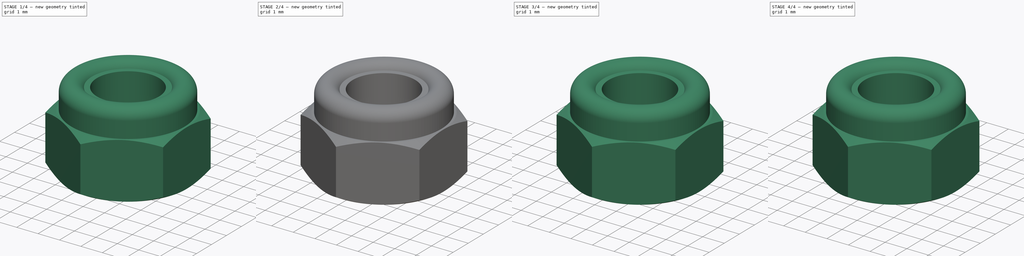
[diagram: build sequence overview — one tinted view per stage of 4, left to right]
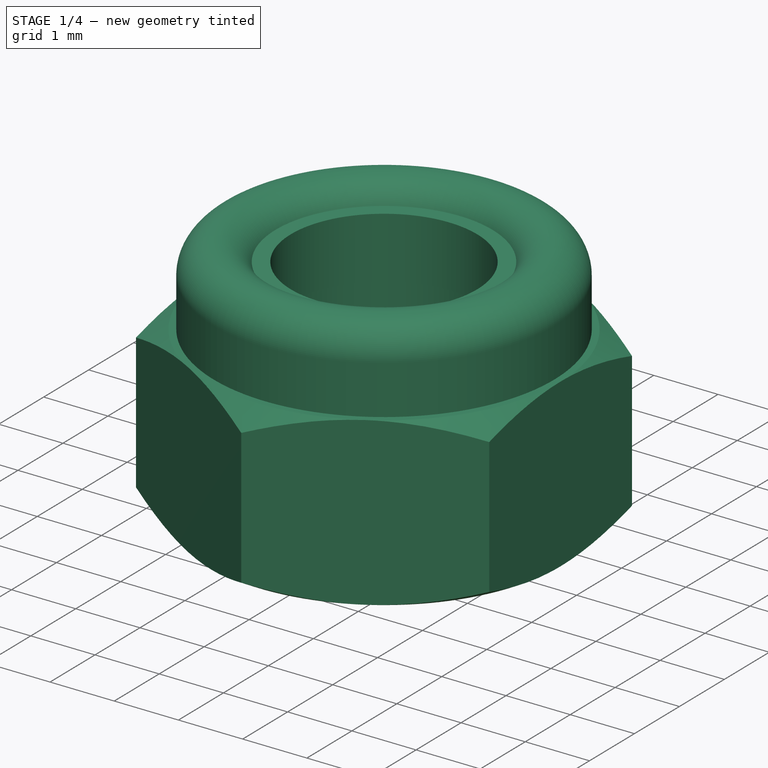
[diagram: stage 1 of 4 — iso view after this stage's code; geometry added in this stage tinted green]
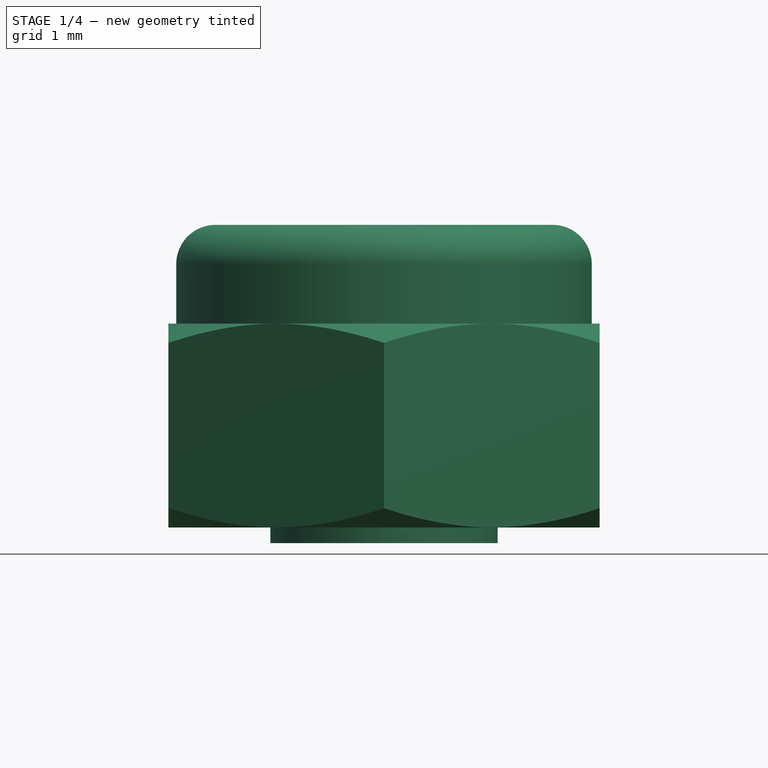
[diagram: stage 1 of 4 — front view after this stage's code; geometry added in this stage tinted green]
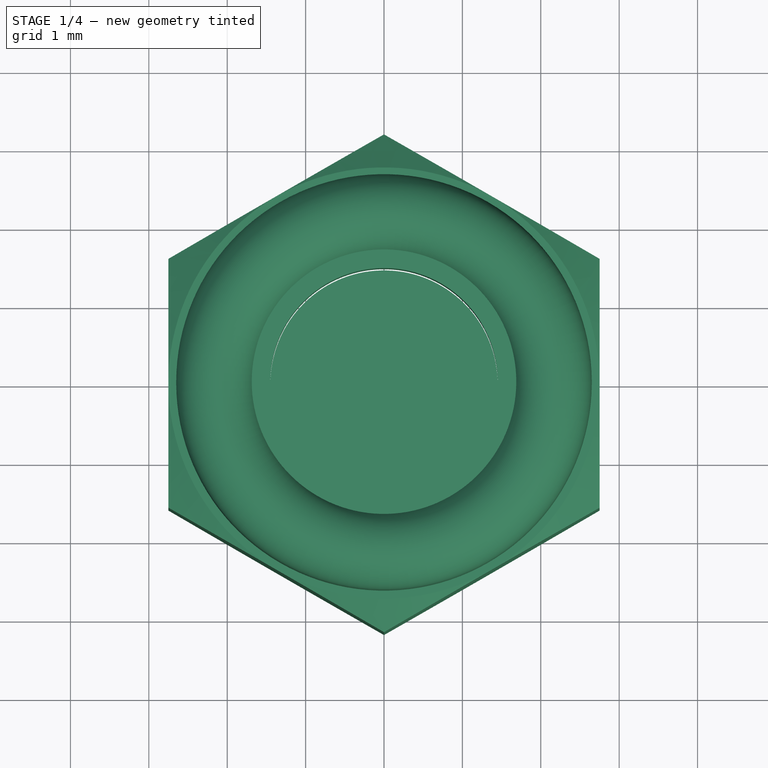
[diagram: stage 1 of 4 — top view after this stage's code; geometry added in this stage tinted green]
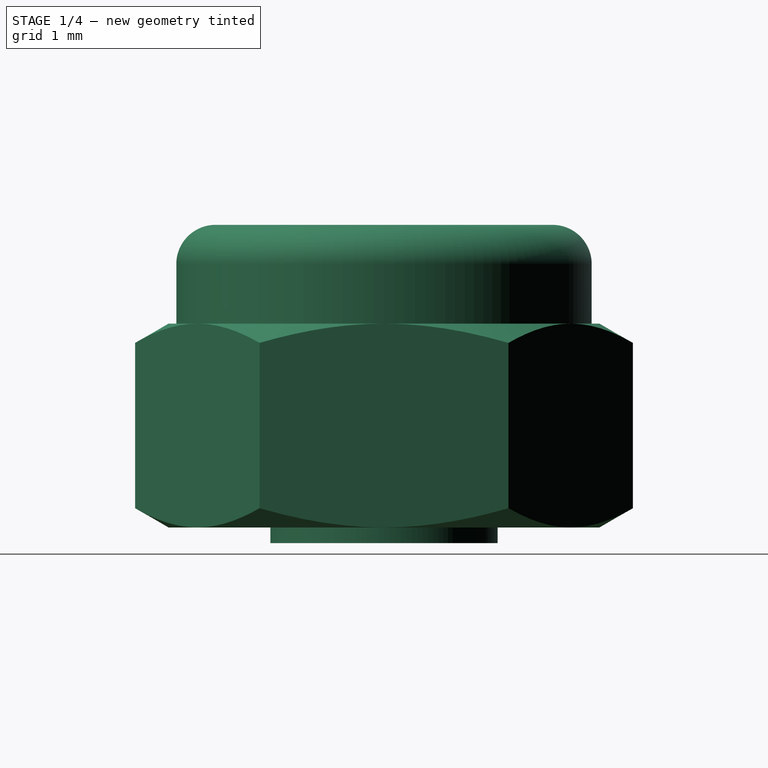
[diagram: stage 1 of 4 — right view after this stage's code; geometry added in this stage tinted green]
FCSTD DOCUMENT  (FreeCAD 0.14R3702 (Git))
Label: Nyloc-Nut_M3
Comment: Derived from the M6 hex nut
License: CC-BY 3.0
LicenseURL: http://creativecommons.org/licenses/by/3.0/
objects: Sketcher::SketchObject×4, PartDesign::Revolution×2, PartDesign::Pocket×2, Part::Cylinder×2, Part::Feature×2, Part::MultiFuse×1, Part::Chamfer×1, Part::Cut×1, Part::Compound×1
note: 20 computed .brp shape members not serialized (recipe doc carries the construction recipe); baked Part::Feature solids carry a one-line shape summary decoded from their .brp

FEATURE [Part::Cylinder] Cylinder001
  Angle = 360
  Height = 2
  Placement = pos=(0,0,-0.2) rot=(0,0,1;0rad)
  Radius = 1.45
FEATURE [Part::Feature] Chamfer001  label="nut-base"
  shape: bbox 6.35 x 6.35 x 3.86 mm, 32 faces (baked)
FEATURE [Part::Feature] Cut001  label="nylon-neck"
  Placement = pos=(0,0,2.6) rot=(0,0,1;0rad)
  shape: bbox 3.5 x 3.5 x 0.95 mm, 4 faces (baked)
FEATURE [Part::Compound] Compound  label="Nyloc-nut-M3"
  Links = -> [Chamfer001,Cut001]
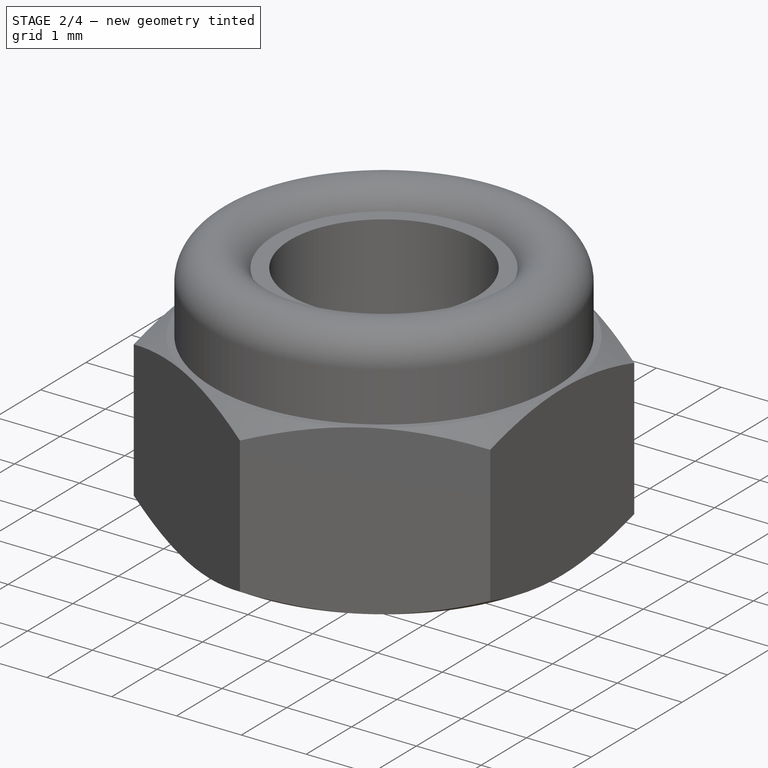
[diagram: stage 2 of 4 — iso view after this stage's code; geometry added in this stage tinted green]
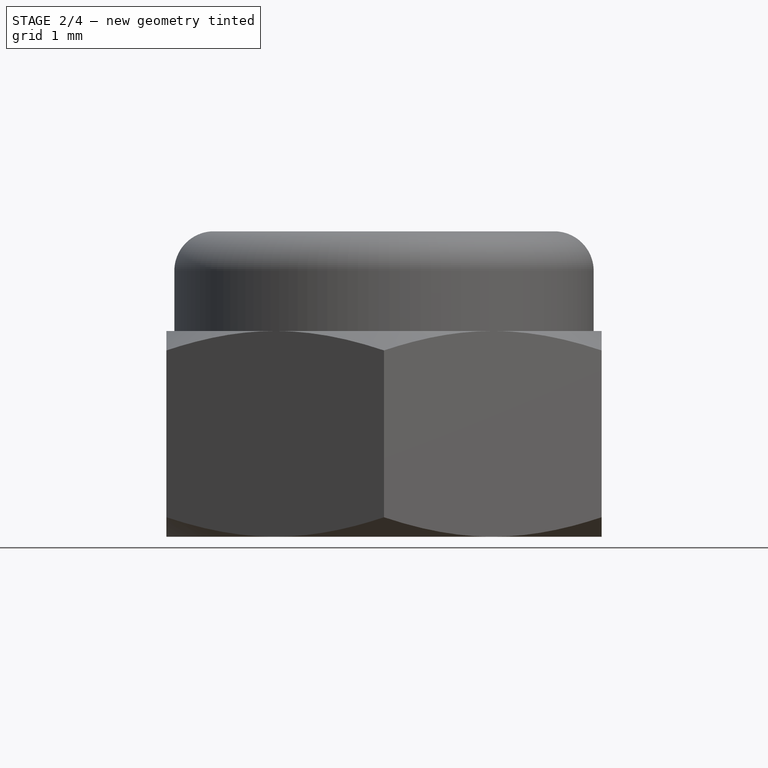
[diagram: stage 2 of 4 — front view after this stage's code; geometry added in this stage tinted green]
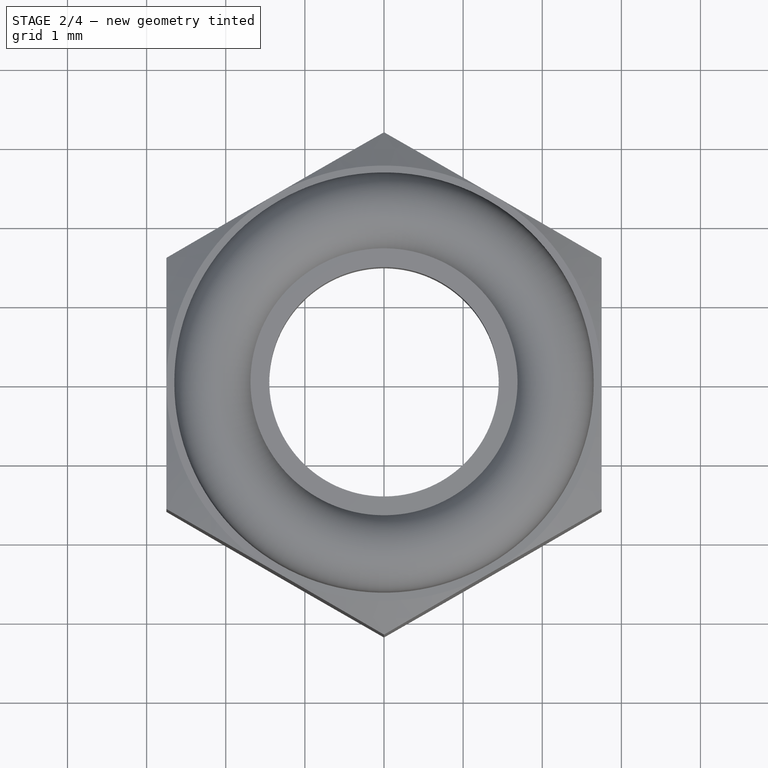
[diagram: stage 2 of 4 — top view after this stage's code; geometry added in this stage tinted green]
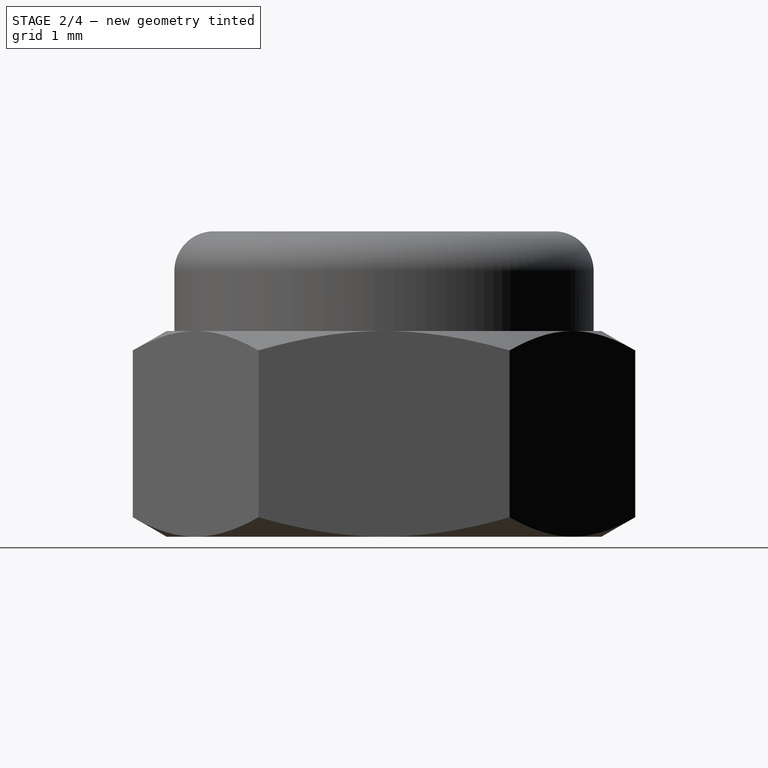
[diagram: stage 2 of 4 — right view after this stage's code; geometry added in this stage tinted green]
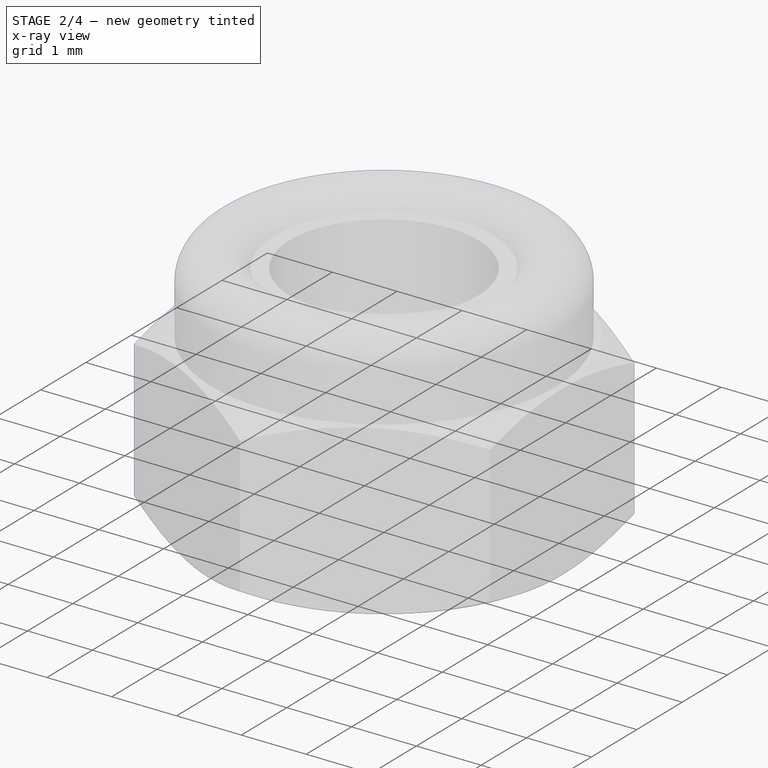
[diagram: stage 2 of 4 — x-ray composite at the iso view; earlier geometry ghosted, this stage's added geometry solid]
FEATURE [Sketcher::SketchObject] Sketch003  label="neck-sketch"
  Placement = pos=(0,0,2.6) rot=(-1,0,0;4.71239rad)
  sketch-geometry (6):
    g0: LineSegment [constr] StartX=1.65 StartY=0.76 StartZ=0 EndX=2.65 EndY=0.76 EndZ=0
    g1: LineSegment StartX=2.65 StartY=0.76 StartZ=0 EndX=2.65 EndY=0 EndZ=0
    g2: LineSegment StartX=2.65 StartY=0 StartZ=0 EndX=1.65 EndY=0 EndZ=0
    g3: LineSegment StartX=1.65 StartY=0 StartZ=0 EndX=1.65 EndY=0.76 EndZ=0
    g4: ArcOfCircle CenterX=2.15 CenterY=0.76 CenterZ=0 NormalX=0 NormalY=0 NormalZ=1 Radius=0.5 StartAngle=0 EndAngle=3.14159
    g5: LineSegment [constr] StartX=2.15 StartY=1.26 StartZ=0 EndX=2.15 EndY=0 EndZ=0
  constraints (19):
    c: Coincident(g0,g1)
    c: Coincident(g1,g2)
    c: Coincident(g2,g3)
    c: Coincident(g3,g0)
    c: Horizontal(g0)
    c: Horizontal(g2)
    c: Vertical(g1)
    c: Vertical(g3)
    c: PointOnObject(g1,g-1)
    c: PointOnObject(g4,g0)
    c: Coincident(g0,g4)
    c: Coincident(g4,g0)
    c: Vertical(g5)
    c: PointOnObject(g5,g2)
    c: Symmetric(g2,g1,g5)
    c: PointOnObject(g5,g4)
    c: DistanceX(g2) = -1
    c: DistanceY(g5) = -1.26
    c: DistanceX(g-1,g1) = 2.65
FEATURE [PartDesign::Revolution] Revolution001  label="neck"
  Angle = 360
  Axis = (0,0,1)
  Base = (0,0,2.6)
  Placement = pos=(0,0,2.6) rot=(-1,0,0;4.71239rad)
  ReferenceAxis = -> Sketch003 [V_Axis]
  Reversed = true
  Sketch = -> Sketch003
FEATURE [Part::Cylinder] Cylinder
  Angle = 360
  Height = 0.95
  Radius = 1.75
FEATURE [Part::Cut] Cut  label="nylon-ring"
  Base = -> Cylinder
  Placement = pos=(0,0,2.6) rot=(0,0,1;0rad)
  Tool = -> Cylinder001
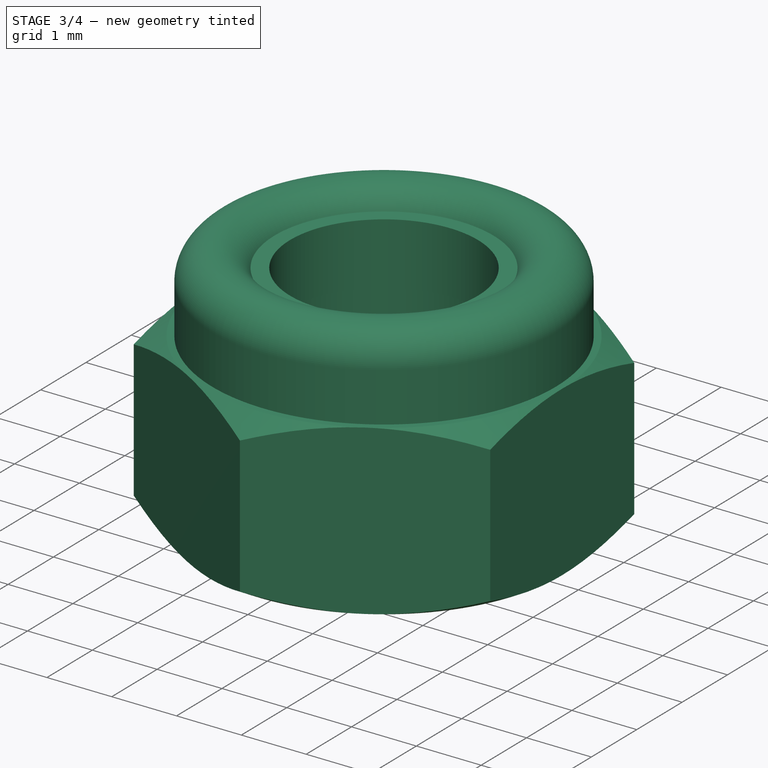
[diagram: stage 3 of 4 — iso view after this stage's code; geometry added in this stage tinted green]
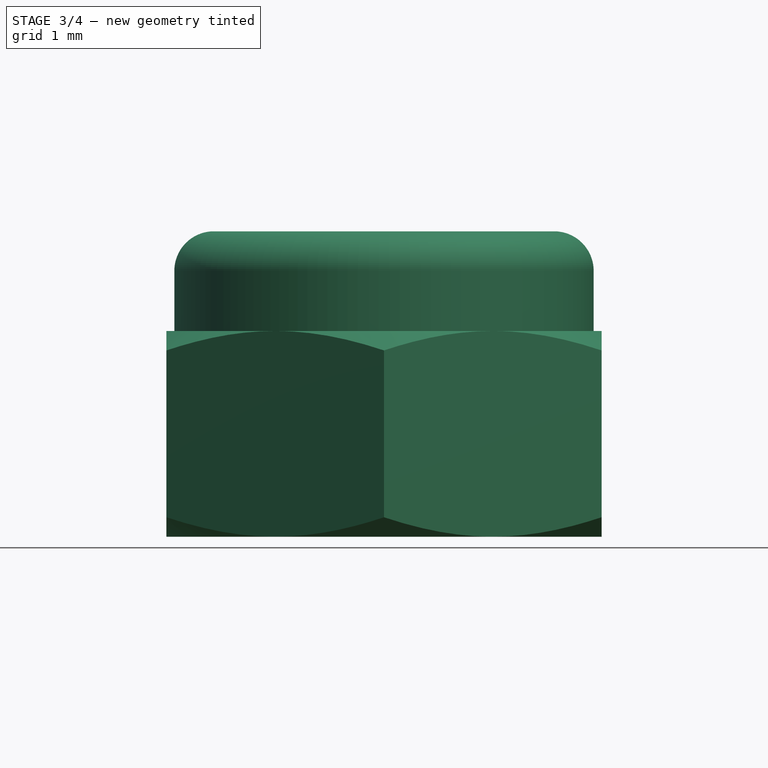
[diagram: stage 3 of 4 — front view after this stage's code; geometry added in this stage tinted green]
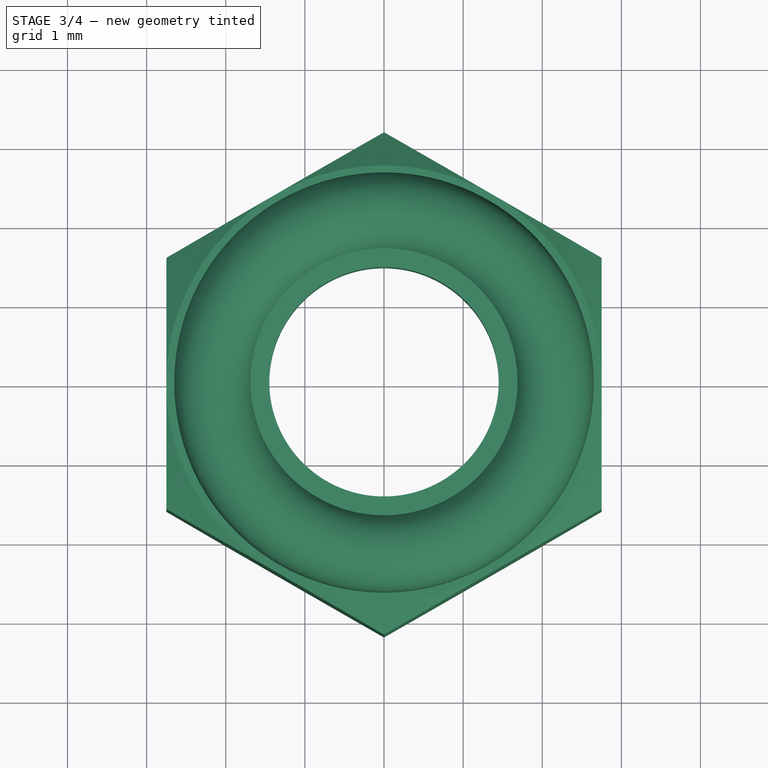
[diagram: stage 3 of 4 — top view after this stage's code; geometry added in this stage tinted green]
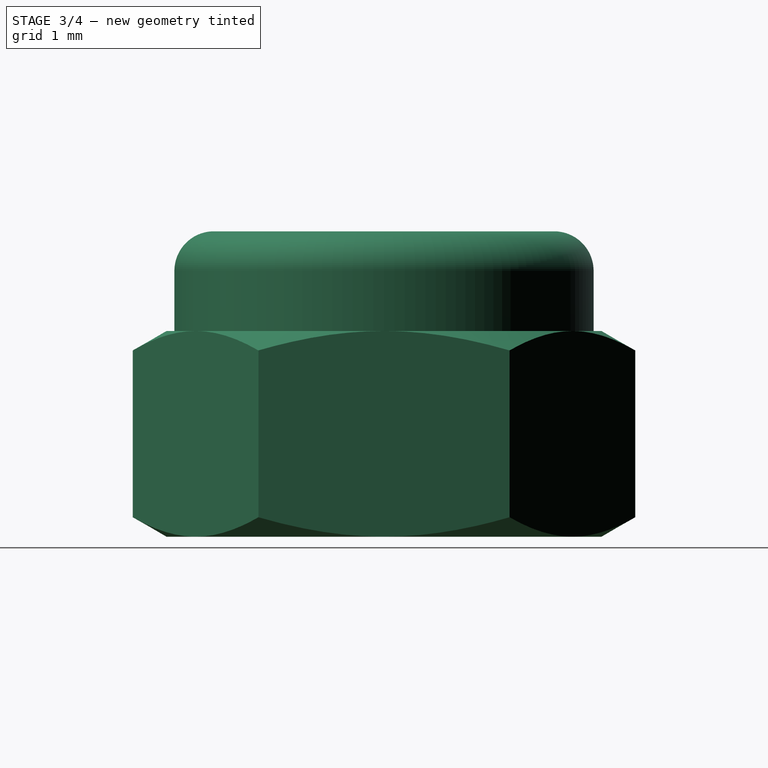
[diagram: stage 3 of 4 — right view after this stage's code; geometry added in this stage tinted green]
FEATURE [Sketcher::SketchObject] Sketch
  Placement = pos=(0,0,0) rot=(1,0,0;1.5708rad)
  sketch-geometry (6):
    g0: LineSegment StartX=0 StartY=2.6 StartZ=0 EndX=2.75 EndY=2.6 EndZ=0
    g1: LineSegment StartX=3.175 StartY=0.245374 StartZ=0 EndX=2.75 EndY=0 EndZ=0
    g2: LineSegment StartX=2.75 StartY=0 StartZ=0 EndX=0 EndY=0 EndZ=0
    g3: LineSegment StartX=0 StartY=0 StartZ=0 EndX=0 EndY=2.6 EndZ=0
    g4: LineSegment StartX=2.75 StartY=2.6 StartZ=0 EndX=3.175 EndY=2.35463 EndZ=0
    g5: LineSegment StartX=3.175 StartY=0.245374 StartZ=0 EndX=3.175 EndY=2.35463 EndZ=0
  constraints (17):
    c: Horizontal(g0)
    c: Coincident(g1,g2)
    c: Horizontal(g2)
    c: Coincident(g2,g3)
    c: Coincident(g3,g0)
    c: DistanceY(g3) = 2.6
    c: Vertical(g3)
    c: Coincident(g2,g-1)
    c: Angle(g1,g-1) = 2.61799
    c: Equal(g0,g2)
    c: DistanceX(g2) = -2.75
    c: DistanceX(g1) = 3.175
    c: Coincident(g4,g0)
    c: Angle(g0,g4) = 2.61799
    c: Coincident(g5,g4)
    c: Vertical(g5)
    c: Coincident(g5,g1)
FEATURE [PartDesign::Revolution] Revolution
  Angle = 360
  Axis = (0,0,1)
  Base = (0,0,0)
  Placement = pos=(0,0,0) rot=(1,0,0;1.5708rad)
  ReferenceAxis = -> Sketch [V_Axis]
  Sketch = -> Sketch
FEATURE [Sketcher::SketchObject] Sketch001  label="Hexagon"
  Placement = pos=(0,0,2.6) rot=(0,0,1;3.14159rad)
  Support = -> Revolution [Face3]
  sketch-geometry (9):
    g0: LineSegment StartX=-2.75 StartY=1.58771 StartZ=0 EndX=0 EndY=3.17543 EndZ=0
    g1: LineSegment StartX=0 StartY=3.17543 StartZ=0 EndX=2.75 EndY=1.58771 EndZ=0
    g2: LineSegment StartX=2.75 StartY=1.58771 StartZ=0 EndX=2.75 EndY=-1.58771 EndZ=0
    g3: LineSegment StartX=2.75 StartY=-1.58771 StartZ=0 EndX=0 EndY=-3.17543 EndZ=0
    g4: LineSegment StartX=0 StartY=-3.17543 StartZ=0 EndX=-2.75 EndY=-1.58771 EndZ=0
    g5: LineSegment StartX=-2.75 StartY=-1.58771 StartZ=0 EndX=-2.75 EndY=1.58771 EndZ=0
    g6: Circle [constr] CenterX=0 CenterY=0 CenterZ=0 NormalX=0 NormalY=0 NormalZ=1 Radius=3.17543
    g7: Circle CenterX=0 CenterY=0 CenterZ=0 NormalX=0 NormalY=0 NormalZ=1 Radius=4.17543
    g8: LineSegment [constr] StartX=0 StartY=4.17543 StartZ=0 EndX=0 EndY=3.17543 EndZ=0
  constraints (26):
    c: Coincident(g0,g1)
    c: Coincident(g1,g2)
    c: Coincident(g2,g3)
    c: Coincident(g3,g4)
    c: Coincident(g4,g5)
    c: Coincident(g5,g0)
    c: Equal(g5,g0)
    c: Equal(g0,g4)
    c: Equal(g4,g3)
    c: Equal(g3,g2)
    c: Equal(g2,g1)
    c: PointOnObject(g0,g6)
    c: PointOnObject(g2,g6)
    c: PointOnObject(g1,g6)
    c: PointOnObject(g4,g6)
    c: PointOnObject(g0,g6)
    c: Coincident(g6,g-1)
    c: Vertical(g5)
    c: Vertical(g2)
    c: DistanceX(g0,g1) = 5.5
    c: Coincident(g7,g-1)
    c: PointOnObject(g8,g6)
    c: Vertical(g8)
    c: PointOnObject(g8,g7)
    c: PointOnObject(g8,g-2)
    c: DistanceY(g8) = -1
FEATURE [PartDesign::Pocket] Pocket
  Length = 5
  Placement = pos=(0,0,0) rot=(1,0,0;1.5708rad)
  Sketch = -> Sketch001
  Type = 1
FEATURE [Sketcher::SketchObject] Sketch002
  Placement = pos=(0,0,2.6) rot=(0,0,1;3.14159rad)
  Support = -> Pocket [Face14]
  sketch-geometry (1):
    g0: Circle CenterX=0 CenterY=0 CenterZ=0 NormalX=0 NormalY=0 NormalZ=1 Radius=1.5
  constraints (2):
    c: Coincident(g0,g-1)
    c: Radius(g0) = 1.5
FEATURE [PartDesign::Pocket] Pocket001
  Length = 5
  Placement = pos=(0,0,0) rot=(1,0,0;1.5708rad)
  Sketch = -> Sketch002
  Type = 1
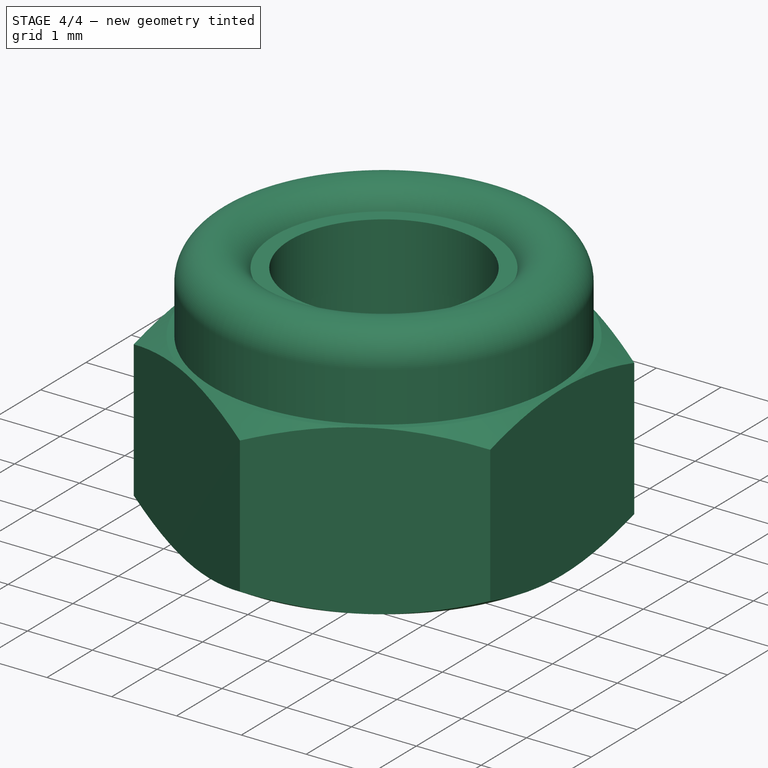
[diagram: stage 4 of 4 — iso view after this stage's code; geometry added in this stage tinted green]
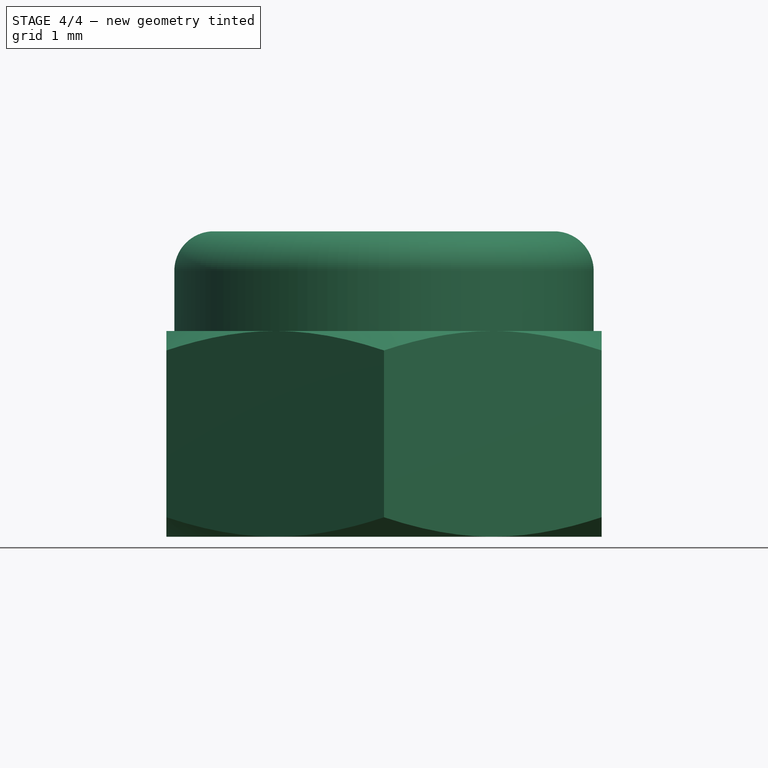
[diagram: stage 4 of 4 — front view after this stage's code; geometry added in this stage tinted green]
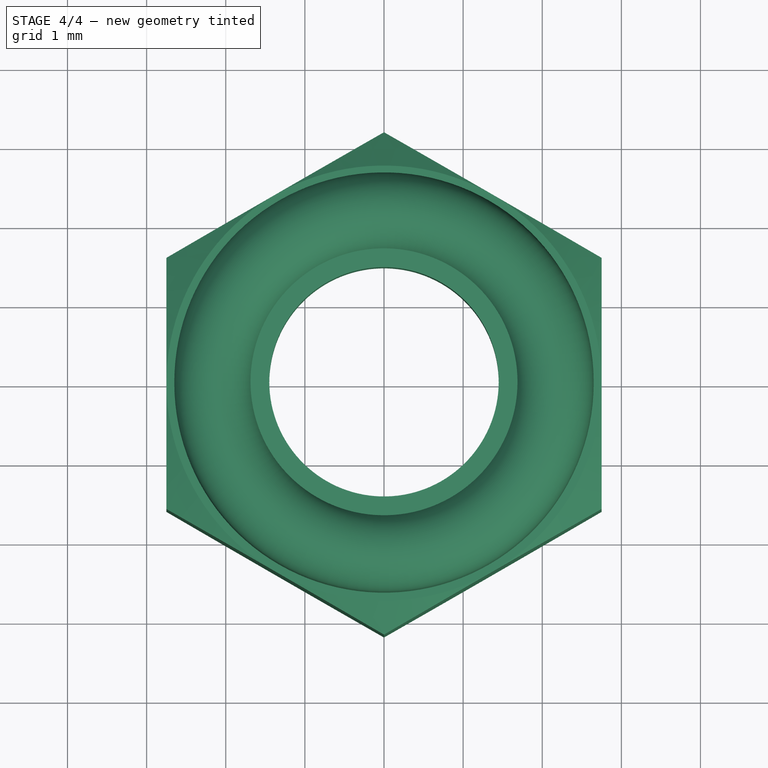
[diagram: stage 4 of 4 — top view after this stage's code; geometry added in this stage tinted green]
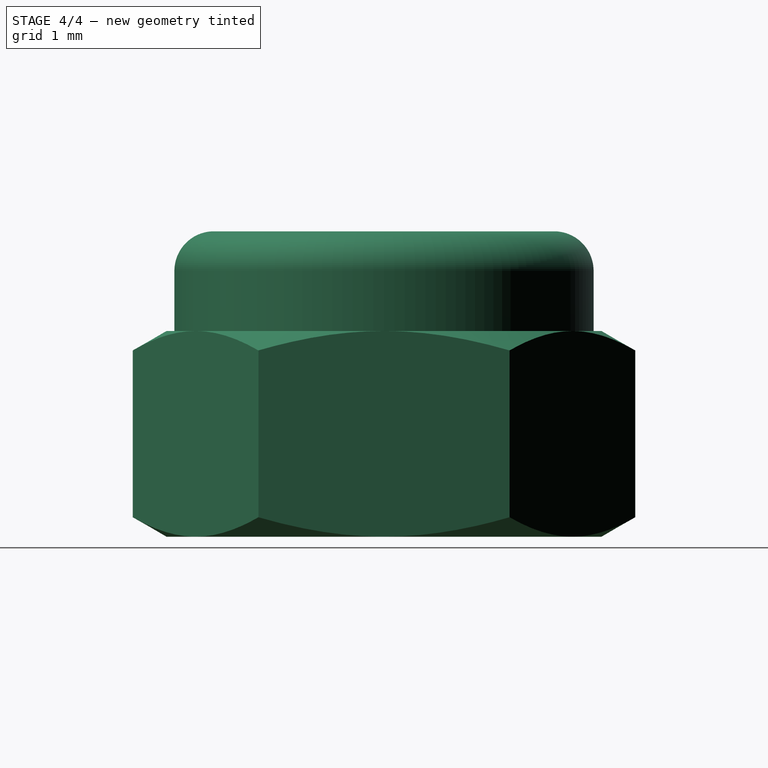
[diagram: stage 4 of 4 — right view after this stage's code; geometry added in this stage tinted green]
FEATURE [Part::MultiFuse] Fusion  label="nut-with-neck"
  Shapes = -> [Pocket001,Revolution001]
FEATURE [Part::Chamfer] Chamfer
  Base = -> Fusion
  Edges = 1 edges r=0.2: [Edge15]
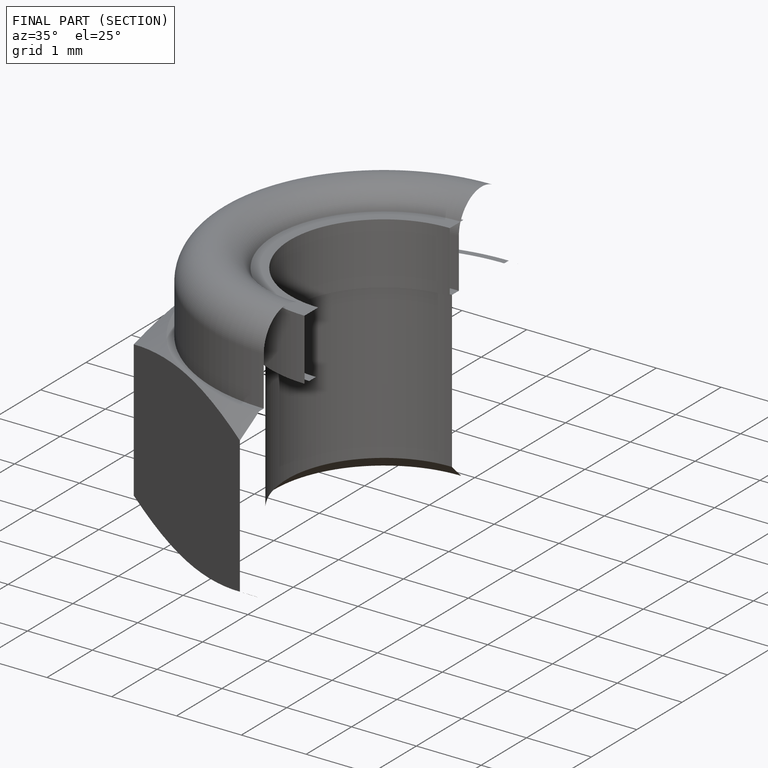
[diagram: finished part — half-section view (interior)]
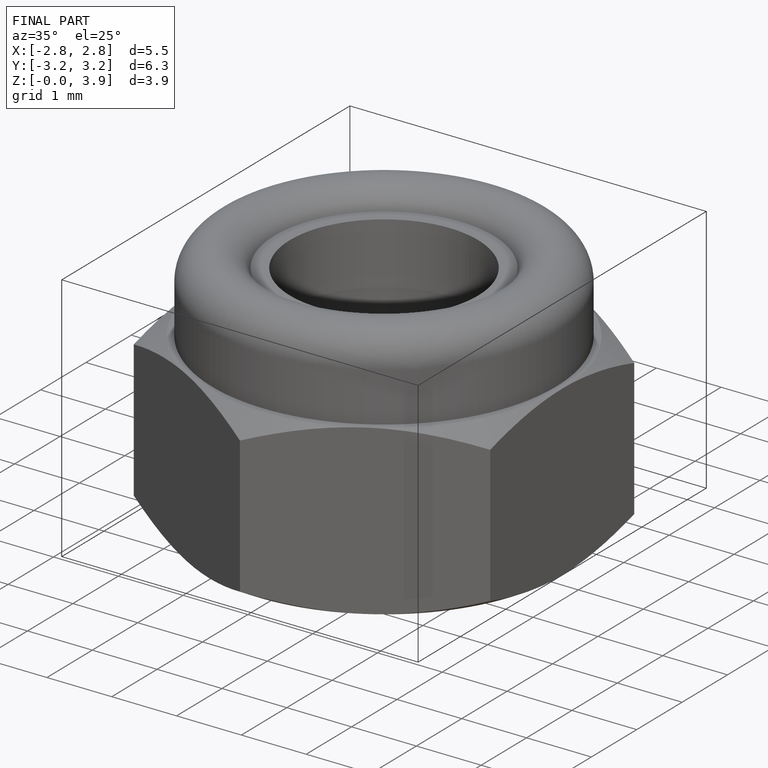
[diagram: finished part — iso view with bounding-box wireframe]
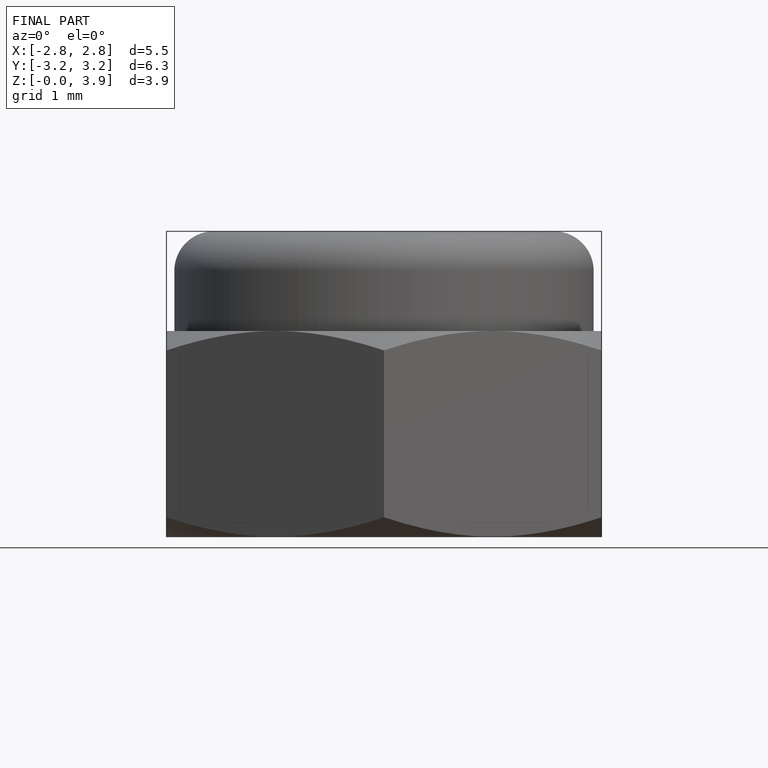
[diagram: finished part — front view with bounding-box wireframe]
